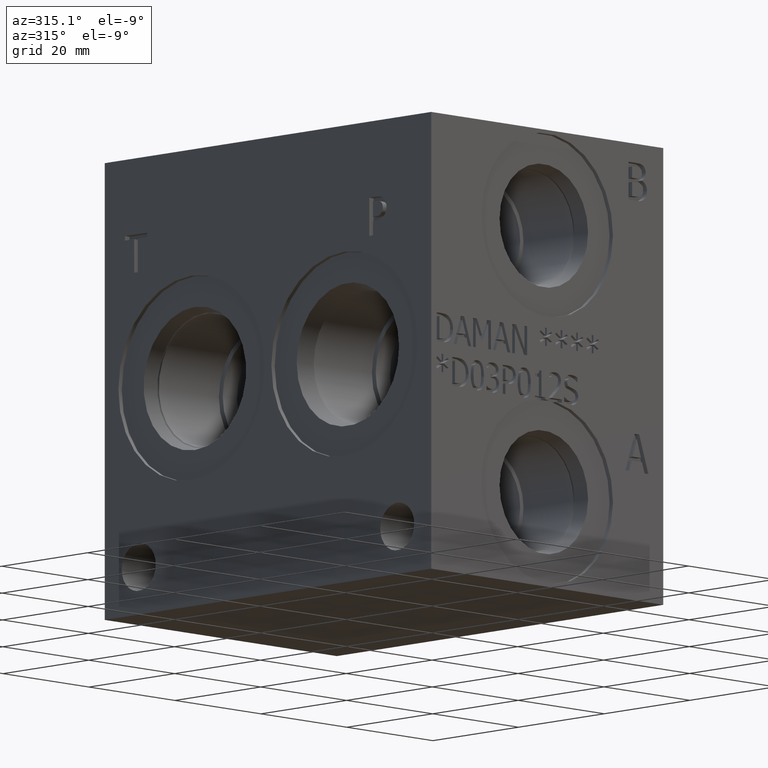
[diagram: clean part render]
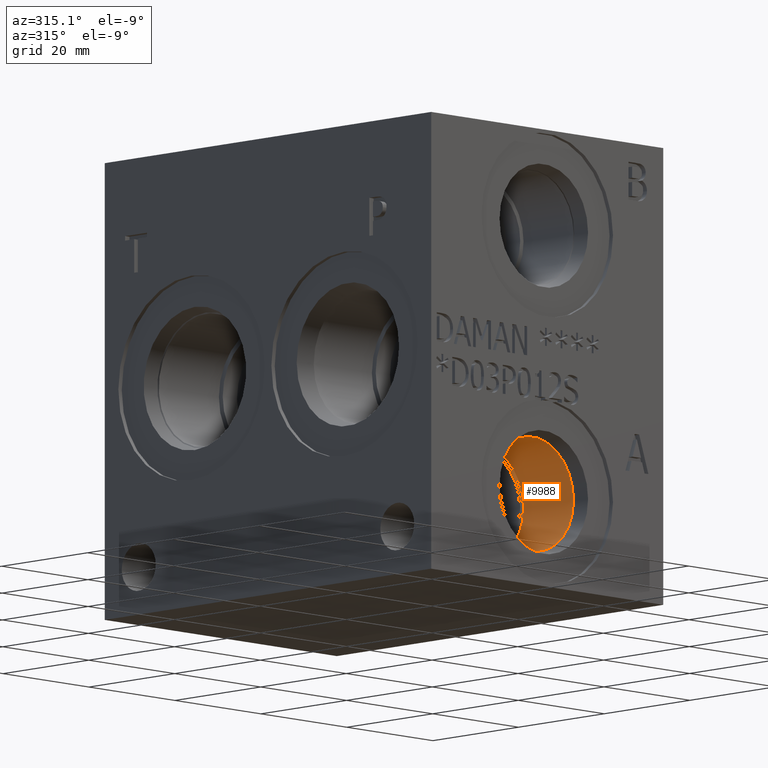
[diagram: same view with one face highlighted and labeled with its STEP entity id]
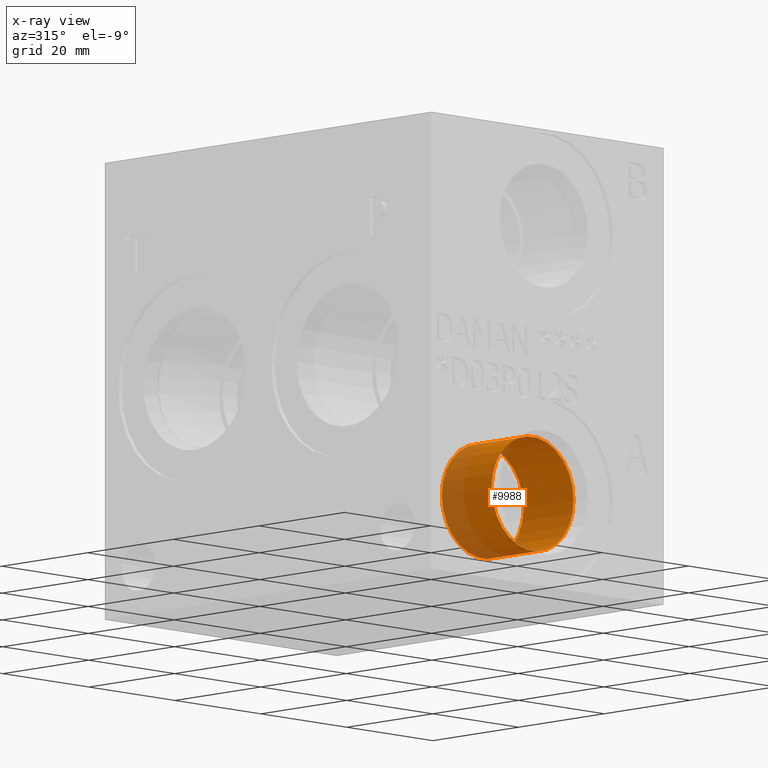
[diagram: x-ray of the same camera — body ghosted, the highlighted face saturated]
A machine part, auxiliary view. The second image highlights one B-rep face of the part: STEP entity #9988.
The next image is the same camera in x-ray: the body ghosted, the highlighted face saturated — about 24% of this face is hidden behind the body in this view.
In plain terms, the highlighted cylindrical surface (bore or boss wall) has radius 9.525 mm, axis along (0, -1, 0).
Its self-contained STEP definition (entity closure, byte-faithful):
#129=CIRCLE('',#10470,9.525);
#130=CIRCLE('',#10471,9.525);
#132=CIRCLE('',#10474,9.525);
#266=CYLINDRICAL_SURFACE('',#10473,9.525);
#1182=FACE_OUTER_BOUND('',#1749,.T.);
#1749=EDGE_LOOP('',(#8423,#8424,#8425,#8426,#8427));
#2738=LINE('',#16890,#3684);
#3684=VECTOR('',#12326,9.525);
#4573=VERTEX_POINT('',#16881);
#4574=VERTEX_POINT('',#16882);
#4576=VERTEX_POINT('',#16888);
#5900=EDGE_CURVE('',#4573,#4574,#129,.T.);
#5901=EDGE_CURVE('',#4574,#4573,#130,.T.);
#5903=EDGE_CURVE('',#4576,#4576,#132,.T.);
#5904=EDGE_CURVE('',#4576,#4574,#2738,.T.);
#8423=ORIENTED_EDGE('',*,*,#5903,.F.);
#8424=ORIENTED_EDGE('',*,*,#5904,.T.);
#8425=ORIENTED_EDGE('',*,*,#5900,.F.);
#8426=ORIENTED_EDGE('',*,*,#5901,.F.);
#8427=ORIENTED_EDGE('',*,*,#5904,.F.);
#9988=ADVANCED_FACE('',(#1182),#266,.F.);
#10470=AXIS2_PLACEMENT_3D('',#16883,#12316,#12317);
#10471=AXIS2_PLACEMENT_3D('',#16884,#12318,#12319);
#10473=AXIS2_PLACEMENT_3D('',#16887,#12322,#12323);
#10474=AXIS2_PLACEMENT_3D('',#16889,#12324,#12325);
#12316=DIRECTION('center_axis',(0.,-1.,0.));
#12317=DIRECTION('ref_axis',(1.,0.,0.));
#12318=DIRECTION('center_axis',(0.,-1.,0.));
#12319=DIRECTION('ref_axis',(1.,0.,0.));
#12322=DIRECTION('center_axis',(0.,-1.,0.));
#12323=DIRECTION('ref_axis',(1.,0.,0.));
#12324=DIRECTION('center_axis',(0.,1.,0.));
#12325=DIRECTION('ref_axis',(1.,0.,0.));
#12326=DIRECTION('',(0.,1.,0.));
#16881=CARTESIAN_POINT('',(36.4998,15.0622,15.875));
#16882=CARTESIAN_POINT('',(17.4498,15.0622,15.875));
#16883=CARTESIAN_POINT('Origin',(26.9748,15.0622,15.875));
#16884=CARTESIAN_POINT('Origin',(26.9748,15.0622,15.875));
#16887=CARTESIAN_POINT('Origin',(26.9748,7.5311,15.875));
#16888=CARTESIAN_POINT('',(17.4498,3.4036,15.875));
#16889=CARTESIAN_POINT('Origin',(26.9748,3.4036,15.875));
#16890=CARTESIAN_POINT('',(17.4498,7.5311,15.875));